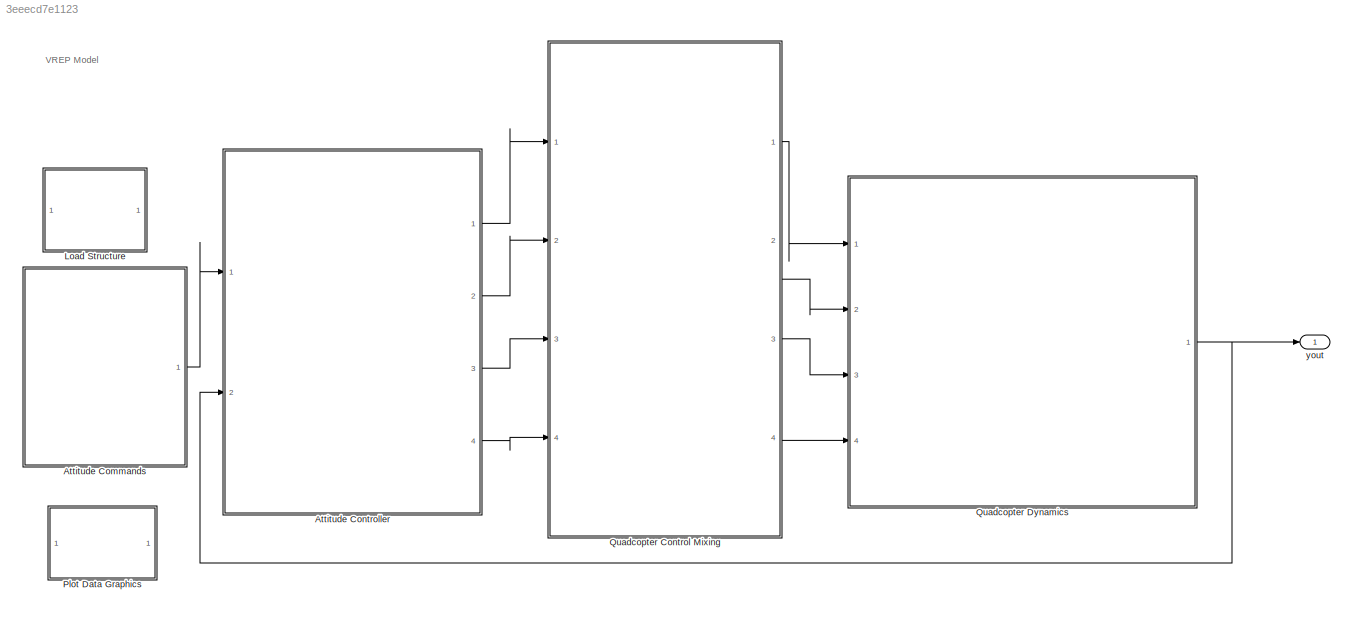
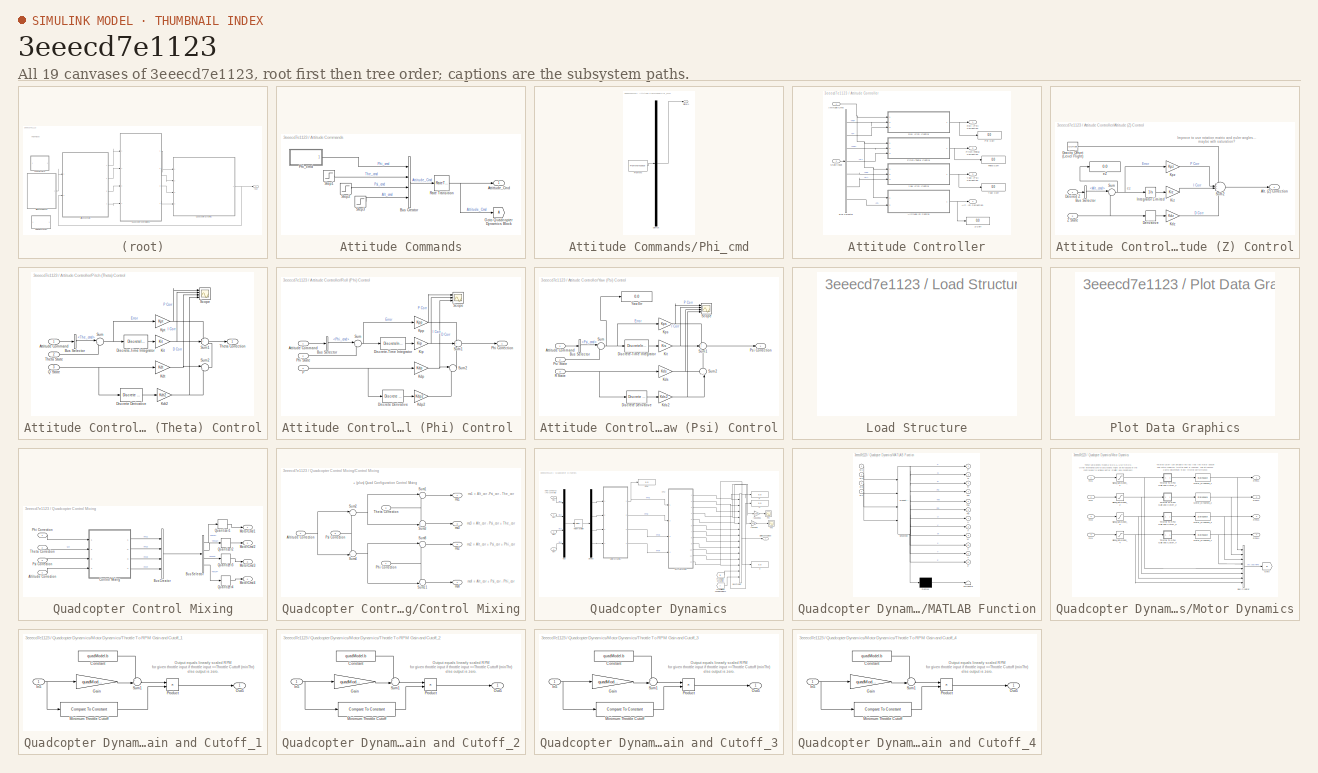
[diagram: thumbnail index - all 19 canvases of the model, root first then tree order]
MODEL slx_3eeecd7e1123
KIND model
WORKSPACE source: MAT-file member
WORKSPACE MCOS: class17 (value not decoded)
BLOCK [SubSystem] Attitude Commands
  FunctionWithSeparateData = off
  MaskHideContents = off
  MinAlgLoopOccurrences = off
  Opaque = off
  Ports = [0, 1]
  PropExecContextOutsideSubsystem = off
  RTWSystemCode = Auto
  RequestExecContextInheritance = off
BLOCK [Outport] Attitude Commands/Attittude_Cmd
  IconDisplay = Port number
BLOCK [BusCreator] Attitude Commands/Bus Creator
  DisplayOption = bar
  Ports = [4, 1]
BLOCK [Goto] Attitude Commands/Goto Quadcopter Dynamics Block
  TagVisibility = global
BLOCK [SubSystem] Attitude Commands/Phi_cmd
  ClipboardFcn = sigbuilder_block('clipboard');
  CloseFcn = sigbuilder_block('close');
  ContinueFcn = sigbuilder_block('continue');
  CopyFcn = sigbuilder_block('copy');
  DeleteFcn = sigbuilder_block('delete');
  FunctionWithSeparateData = off
  LoadFcn = sigbuilder_block('load');
  MaskHideContents = on
  MinAlgLoopOccurrences = off
  ModelCloseFcn = sigbuilder_block('modelClose');
  NameChangeFcn = sigbuilder_block('namechange');
  Opaque = off
  OpenFcn = sigbuilder_block('open',[6.75 6.75 1138.5 568.5 ]);
  PauseFcn = sigbuilder_block('pause');
  Ports = [0, 1]
  PreSaveFcn = sigbuilder_block('preSave');
  PropExecContextOutsideSubsystem = off
  RTWSystemCode = Auto
  RequestExecContextInheritance = off
  StartFcn = sigbuilder_block('start');
  StopFcn = sigbuilder_block('stop');
  Tag = STV Subsys
BLOCK [Demux] Attitude Commands/Phi_cmd/Demux
  Outputs = 1
  Ports = [1, 1]
  Tag = STV Demux
BLOCK [FromWorkspace] Attitude Commands/Phi_cmd/FromWs
  SampleTime = 0
  Tag = STV FromWs
  VariableName = tuvar
  ZeroCross = on
BLOCK [Outport] Attitude Commands/Phi_cmd/Signal 1
  IconDisplay = Port number
  Tag = STV Outport
BLOCK [RateTransition] Attitude Commands/Rate Transition
  Deterministic = off
  OutPortSampleTime = 0.01
BLOCK [Step] Attitude Commands/Step1
  After = 0
  SampleTime = 0
  Time = 0
BLOCK [Step] Attitude Commands/Step2
  After = -pi/2
  Before = -pi/2
  SampleTime = 0
  Time = 0
BLOCK [Step] Attitude Commands/Step3
  After = 1.5
  Before = 1.5
  SampleTime = 0
  Time = 0
BLOCK [SubSystem] Attitude Controller
  FunctionWithSeparateData = off
  MaskHideContents = off
  MinAlgLoopOccurrences = off
  Opaque = off
  Ports = [2, 4]
  PropExecContextOutsideSubsystem = off
  RTWSystemCode = Auto
  RequestExecContextInheritance = off
BLOCK [Outport] Attitude Controller/Alt. (Z) Correction
  IconDisplay = Port number
  Port = 4
BLOCK [SubSystem] Attitude Controller/Altitude (Z) Control
  FunctionWithSeparateData = off
  MaskHideContents = off
  MinAlgLoopOccurrences = off
  Opaque = off
  Ports = [2, 1]
  PropExecContextOutsideSubsystem = off
  RTWSystemCode = Auto
  RequestExecContextInheritance = off
BLOCK [Outport] Attitude Controller/Altitude (Z) Control/Alt. (Z) Correction
  IconDisplay = Port number
BLOCK [BusSelector] Attitude Controller/Altitude (Z) Control/Bus Selector
  OutputSignals = Alt_cmd
  Ports = [1, 1]
BLOCK [Derivative] Attitude Controller/Altitude (Z) Control/Derivative
BLOCK [Inport] Attitude Controller/Altitude (Z) Control/Desired Z
  IconDisplay = Port number
BLOCK [Constant] Attitude Controller/Altitude (Z) Control/Gravity Offset (Level Flight)
  Value = GOffset
BLOCK [Integrator] Attitude Controller/Altitude (Z) Control/Integrator Limited
  LimitOutput = on
  LowerSaturationLimit = LSat
  Ports = [1, 1]
  UpperSaturationLimit = USat
BLOCK [Gain] Attitude Controller/Altitude (Z) Control/Kdz
  Gain = Kdz
  OutDataTypeStr = Inherit: Inherit via internal rule
  ParamDataTypeStr = Inherit: Inherit via internal rule
  SaturateOnIntegerOverflow = off
BLOCK [Gain] Attitude Controller/Altitude (Z) Control/Kiz
  Gain = Kiz
  OutDataTypeStr = Inherit: Inherit via internal rule
  ParamDataTypeStr = Inherit: Inherit via internal rule
  SaturateOnIntegerOverflow = off
BLOCK [Gain] Attitude Controller/Altitude (Z) Control/Kpz
  Gain = Kpz
  OutDataTypeStr = Inherit: Inherit via internal rule
  ParamDataTypeStr = Inherit: Inherit via internal rule
  SaturateOnIntegerOverflow = off
BLOCK [Sum] Attitude Controller/Altitude (Z) Control/Sum
  IconShape = round
  InputSameDT = off
  Inputs = |+-
  OutDataTypeStr = Inherit: Inherit via internal rule
  Ports = [2, 1]
  SaturateOnIntegerOverflow = off
BLOCK [Sum] Attitude Controller/Altitude (Z) Control/Sum2
  IconShape = round
  InputSameDT = off
  Inputs = +++-
  OutDataTypeStr = Inherit: Inherit via internal rule
  Ports = [4, 1]
  SaturateOnIntegerOverflow = off
BLOCK [Inport] Attitude Controller/Altitude (Z) Control/Z State
  IconDisplay = Port number
  Port = 2
BLOCK [Display] Attitude Controller/Altitude (Z) Control/eZ
  Decimation = 1
  Lockdown = off
  Ports = [1]
BLOCK [Inport] Attitude Controller/Attitude Cmd
  IconDisplay = Port number
BLOCK [BusSelector] Attitude Controller/Bus Selector
  OutputSignals = Phi,P,The,Q,Psi,R,Z
  Ports = [1, 7]
BLOCK [Display] Attitude Controller/Phi Corr
  Decimation = 1
  Lockdown = off
  Ports = [1]
BLOCK [SubSystem] Attitude Controller/Pitch (Theta) Control
  FunctionWithSeparateData = off
  MaskHideContents = off
  MinAlgLoopOccurrences = off
  Opaque = off
  Ports = [3, 1]
  PropExecContextOutsideSubsystem = off
  RTWSystemCode = Auto
  RequestExecContextInheritance = off
BLOCK [Inport] Attitude Controller/Pitch (Theta) Control/Attitude Command
  IconDisplay = Port number
BLOCK [BusSelector] Attitude Controller/Pitch (Theta) Control/Bus Selector
  OutputSignals = The_cmd
  Ports = [1, 1]
BLOCK [Reference] Attitude Controller/Pitch (Theta) Control/Discrete Derivative  REF=simulink/Discrete/Discrete Derivative
  DoSatur = off
  ICPrevScaledInput = 0.0
  InputProcessing = Inherited
  LockScale = off
  OutDataType = fixdt(1, 16)
  OutDataTypeStr = Inherit: Inherit via internal rule
  OutMax = []
  OutMin = []
  OutScaling = 2^-10
  OutputDataTypeScalingMode = Inherit via internal rule
  Ports = [1, 1]
  RndMeth = Floor
  SourceBlock = simulink/Discrete/Discrete Derivative
  SourceType = Discrete Derivative
  gainval = 1.0
BLOCK [DiscreteIntegrator] Attitude Controller/Pitch (Theta) Control/Discrete-Time Integrator
  ICPrevOutput = DiscIntNeverNeededParam
  ICPrevScaledInput = DiscIntNeverNeededParam
  IntegratorMethod = Integration: Backward Euler
  LimitOutput = on
  LowerSaturationLimit = LSat
  Ports = [1, 1]
  SampleTime = 0.01
  UpperSaturationLimit = USat
BLOCK [Gain] Attitude Controller/Pitch (Theta) Control/Kdt
  Gain = Kdt
  OutDataTypeStr = Inherit: Inherit via internal rule
  ParamDataTypeStr = Inherit: Inherit via internal rule
  SaturateOnIntegerOverflow = off
BLOCK [Gain] Attitude Controller/Pitch (Theta) Control/Kdt2
  Gain = Kdt2
  OutDataTypeStr = Inherit: Inherit via internal rule
  ParamDataTypeStr = Inherit: Inherit via internal rule
  SaturateOnIntegerOverflow = off
BLOCK [Gain] Attitude Controller/Pitch (Theta) Control/Kit
  Gain = Kit
  OutDataTypeStr = Inherit: Inherit via internal rule
  ParamDataTypeStr = Inherit: Inherit via internal rule
  SaturateOnIntegerOverflow = off
BLOCK [Gain] Attitude Controller/Pitch (Theta) Control/Kpt
  Gain = Kpt
  OutDataTypeStr = Inherit: Inherit via internal rule
  ParamDataTypeStr = Inherit: Inherit via internal rule
  SaturateOnIntegerOverflow = off
BLOCK [Inport] Attitude Controller/Pitch (Theta) Control/Q State
  IconDisplay = Port number
  Port = 3
BLOCK [Scope] Attitude Controller/Pitch (Theta) Control/Scope
  DataFormat = StructureWithTime
  Floating = off
  LegendLocations = 0.92877     0.94234    0.051435    0.021852\n0.93155     0.70326    0.048657    0.021852\n0.92877      0.4654    0.051435    0.021852\n0.93363     0.22632    0.046574    0.021852
  LimitDataPoints = off
  NumInputPorts = 4
  Ports = [4]
  SampleTime = 0
  SaveName = ScopeData2
  ShowLegends = on
  YMax = -0.025~0.1075~0.25~0.3
  YMin = -0.12~0.0775~-0.125~-0.4
  ZoomMode = xonly
BLOCK [Sum] Attitude Controller/Pitch (Theta) Control/Sum
  IconShape = round
  InputSameDT = off
  Inputs = |+-
  OutDataTypeStr = Inherit: Inherit via internal rule
  Ports = [2, 1]
  SaturateOnIntegerOverflow = off
BLOCK [Sum] Attitude Controller/Pitch (Theta) Control/Sum1
  IconShape = round
  InputSameDT = off
  Inputs = ++-
  OutDataTypeStr = Inherit: Inherit via internal rule
  Ports = [3, 1]
  SaturateOnIntegerOverflow = off
BLOCK [Sum] Attitude Controller/Pitch (Theta) Control/Sum2
  IconShape = round
  InputSameDT = off
  Inputs = |++
  OutDataTypeStr = Inherit: Inherit via internal rule
  Ports = [2, 1]
  SaturateOnIntegerOverflow = off
BLOCK [Outport] Attitude Controller/Pitch (Theta) Control/Theta Correction
  IconDisplay = Port number
BLOCK [Inport] Attitude Controller/Pitch (Theta) Control/Theta State
  IconDisplay = Port number
  Port = 2
BLOCK [Outport] Attitude Controller/Pitch (Theta) Correction
  IconDisplay = Port number
  Port = 2
BLOCK [SubSystem] Attitude Controller/Roll (Phi) Control 
  FunctionWithSeparateData = off
  MaskHideContents = off
  MinAlgLoopOccurrences = off
  Opaque = off
  Ports = [3, 1]
  PropExecContextOutsideSubsystem = off
  RTWSystemCode = Auto
  RequestExecContextInheritance = off
BLOCK [Inport] Attitude Controller/Roll (Phi) Control /Attitude Command 
  IconDisplay = Port number
BLOCK [BusSelector] Attitude Controller/Roll (Phi) Control /Bus Selector
  OutputSignals = Phi_cmd
  Ports = [1, 1]
BLOCK [Reference] Attitude Controller/Roll (Phi) Control /Discrete Derivative  REF=simulink/Discrete/Discrete Derivative
  DoSatur = off
  ICPrevScaledInput = 0.0
  InputProcessing = Inherited
  LockScale = off
  OutDataType = fixdt(1, 16)
  OutDataTypeStr = Inherit: Inherit via internal rule
  OutMax = []
  OutMin = []
  OutScaling = 2^-10
  OutputDataTypeScalingMode = Inherit via internal rule
  Ports = [1, 1]
  RndMeth = Floor
  SourceBlock = simulink/Discrete/Discrete Derivative
  SourceType = Discrete Derivative
  gainval = 1.0
BLOCK [DiscreteIntegrator] Attitude Controller/Roll (Phi) Control /Discrete-Time Integrator
  ICPrevOutput = DiscIntNeverNeededParam
  ICPrevScaledInput = DiscIntNeverNeededParam
  IntegratorMethod = Integration: Backward Euler
  LimitOutput = on
  LowerSaturationLimit = LSat
  Ports = [1, 1]
  SampleTime = 0.01
  UpperSaturationLimit = USat
BLOCK [Gain] Attitude Controller/Roll (Phi) Control /Kdp
  Gain = Kdp
  OutDataTypeStr = Inherit: Inherit via internal rule
  ParamDataTypeStr = Inherit: Inherit via internal rule
  SaturateOnIntegerOverflow = off
BLOCK [Gain] Attitude Controller/Roll (Phi) Control /Kdp2
  Gain = Kdp2
  OutDataTypeStr = Inherit: Inherit via internal rule
  ParamDataTypeStr = Inherit: Inherit via internal rule
  SaturateOnIntegerOverflow = off
BLOCK [Gain] Attitude Controller/Roll (Phi) Control /Kip
  Gain = Kip
  OutDataTypeStr = Inherit: Inherit via internal rule
  ParamDataTypeStr = Inherit: Inherit via internal rule
  SaturateOnIntegerOverflow = off
BLOCK [Gain] Attitude Controller/Roll (Phi) Control /Kpp
  Gain = Kpp
  OutDataTypeStr = Inherit: Inherit via internal rule
  ParamDataTypeStr = Inherit: Inherit via internal rule
  SaturateOnIntegerOverflow = off
BLOCK [Inport] Attitude Controller/Roll (Phi) Control /P
  IconDisplay = Port number
  Port = 3
BLOCK [Outport] Attitude Controller/Roll (Phi) Control /Phi Correction
  IconDisplay = Port number
BLOCK [Inport] Attitude Controller/Roll (Phi) Control /Phi State
  IconDisplay = Port number
  Port = 2
BLOCK [Scope] Attitude Controller/Roll (Phi) Control /Scope
  DataFormat = StructureWithTime
  Floating = off
  LimitDataPoints = off
  NumInputPorts = 3
  Ports = [3]
  SampleTime = 0
  ShowLegends = on
  YMax = 5~5~5
  YMin = -5~-5~-5
BLOCK [Sum] Attitude Controller/Roll (Phi) Control /Sum
  IconShape = round
  InputSameDT = off
  Inputs = |+-
  OutDataTypeStr = Inherit: Inherit via internal rule
  Ports = [2, 1]
  SaturateOnIntegerOverflow = off
BLOCK [Sum] Attitude Controller/Roll (Phi) Control /Sum1
  IconShape = round
  InputSameDT = off
  Inputs = ++-
  OutDataTypeStr = Inherit: Inherit via internal rule
  Ports = [3, 1]
  SaturateOnIntegerOverflow = off
BLOCK [Sum] Attitude Controller/Roll (Phi) Control /Sum2
  IconShape = round
  InputSameDT = off
  Inputs = |++
  OutDataTypeStr = Inherit: Inherit via internal rule
  Ports = [2, 1]
  SaturateOnIntegerOverflow = off
BLOCK [Outport] Attitude Controller/Roll (Phi) Correction
  IconDisplay = Port number
BLOCK [Inport] Attitude Controller/State Input
  IconDisplay = Port number
  Port = 2
BLOCK [Display] Attitude Controller/Theta Corr
  Decimation = 1
  Lockdown = off
  Ports = [1]
BLOCK [SubSystem] Attitude Controller/Yaw (Psi) Control
  FunctionWithSeparateData = off
  MaskHideContents = off
  MinAlgLoopOccurrences = off
  Opaque = off
  Ports = [3, 1]
  PropExecContextOutsideSubsystem = off
  RTWSystemCode = Auto
  RequestExecContextInheritance = off
BLOCK [Inport] Attitude Controller/Yaw (Psi) Control/Attitude Command
  IconDisplay = Port number
BLOCK [BusSelector] Attitude Controller/Yaw (Psi) Control/Bus Selector
  OutputSignals = Psi_cmd
  Ports = [1, 1]
BLOCK [Reference] Attitude Controller/Yaw (Psi) Control/Discrete Derivative  REF=simulink/Discrete/Discrete Derivative
  DoSatur = off
  ICPrevScaledInput = 0.0
  InputProcessing = Inherited
  LockScale = off
  OutDataType = fixdt(1, 16)
  OutDataTypeStr = Inherit: Inherit via internal rule
  OutMax = []
  OutMin = []
  OutScaling = 2^-10
  OutputDataTypeScalingMode = Inherit via internal rule
  Ports = [1, 1]
  RndMeth = Floor
  SourceBlock = simulink/Discrete/Discrete Derivative
  SourceType = Discrete Derivative
  gainval = 1.0
BLOCK [DiscreteIntegrator] Attitude Controller/Yaw (Psi) Control/Discrete-Time Integrator
  ICPrevOutput = DiscIntNeverNeededParam
  ICPrevScaledInput = DiscIntNeverNeededParam
  IntegratorMethod = Integration: Backward Euler
  LimitOutput = on
  LowerSaturationLimit = LSat
  Ports = [1, 1]
  SampleTime = 0.01
  UpperSaturationLimit = USat
BLOCK [Gain] Attitude Controller/Yaw (Psi) Control/Kds
  Gain = Kds
  OutDataTypeStr = Inherit: Inherit via internal rule
  ParamDataTypeStr = Inherit: Inherit via internal rule
  SaturateOnIntegerOverflow = off
BLOCK [Gain] Attitude Controller/Yaw (Psi) Control/Kds2
  Gain = Kds2
  OutDataTypeStr = Inherit: Inherit via internal rule
  ParamDataTypeStr = Inherit: Inherit via internal rule
  SaturateOnIntegerOverflow = off
BLOCK [Gain] Attitude Controller/Yaw (Psi) Control/Kit
  Gain = Kis
  OutDataTypeStr = Inherit: Inherit via internal rule
  ParamDataTypeStr = Inherit: Inherit via internal rule
  SaturateOnIntegerOverflow = off
BLOCK [Gain] Attitude Controller/Yaw (Psi) Control/Kps
  Gain = Kps
  OutDataTypeStr = Inherit: Inherit via internal rule
  ParamDataTypeStr = Inherit: Inherit via internal rule
  SaturateOnIntegerOverflow = off
BLOCK [Outport] Attitude Controller/Yaw (Psi) Control/Psi Correction
  IconDisplay = Port number
BLOCK [Inport] Attitude Controller/Yaw (Psi) Control/Psi State
  IconDisplay = Port number
  Port = 2
BLOCK [Inport] Attitude Controller/Yaw (Psi) Control/R State
  IconDisplay = Port number
  Port = 3
BLOCK [Scope] Attitude Controller/Yaw (Psi) Control/Scope
  DataFormat = StructureWithTime
  Floating = off
  LimitDataPoints = off
  NumInputPorts = 4
  Ports = [4]
  SampleTime = 0
  SaveName = ScopeData1
  ShowLegends = on
  YMax = 0.65~0.004~0.00045~0.006
  YMin = 0~0~0~0
BLOCK [Sum] Attitude Controller/Yaw (Psi) Control/Sum
  IconShape = round
  InputSameDT = off
  Inputs = |+-
  OutDataTypeStr = Inherit: Inherit via internal rule
  Ports = [2, 1]
  SaturateOnIntegerOverflow = off
BLOCK [Sum] Attitude Controller/Yaw (Psi) Control/Sum1
  IconShape = round
  InputSameDT = off
  Inputs = ++-
  OutDataTypeStr = Inherit: Inherit via internal rule
  Ports = [3, 1]
  SaturateOnIntegerOverflow = off
BLOCK [Sum] Attitude Controller/Yaw (Psi) Control/Sum2
  IconShape = round
  InputSameDT = off
  Inputs = ++|
  OutDataTypeStr = Inherit: Inherit via internal rule
  Ports = [2, 1]
  SaturateOnIntegerOverflow = off
BLOCK [Display] Attitude Controller/Yaw (Psi) Control/Yaw Err 
  Decimation = 1
  Lockdown = off
  Ports = [1]
BLOCK [Outport] Attitude Controller/Yaw (Psi) Correction
  IconDisplay = Port number
  Port = 3
BLOCK [Display] Attitude Controller/Yaw Corr
  Decimation = 1
  Lockdown = off
  Ports = [1]
BLOCK [Display] Attitude Controller/Z Corr
  Decimation = 1
  Lockdown = off
  Ports = [1]
BLOCK [SubSystem] Load Structure
  FunctionWithSeparateData = off
  MaskHideContents = off
  MinAlgLoopOccurrences = off
  Opaque = off
  OpenFcn = uiopen('load')                                  \nif (exist('IC')==1 && exist('quadModel')==1)    \nset_param(bdroot, 'SimulationCommand', 'update')\nend
  Ports = []
  PropExecContextOutsideSubsystem = off
  RTWSystemCode = Auto
  RequestExecContextInheritance = off
  ShowPortLabels = FromPortBlockName
BLOCK [SubSystem] Plot Data Graphics
  FunctionWithSeparateData = off
  MaskHideContents = off
  MinAlgLoopOccurrences = off
  Opaque = off
  OpenFcn = if exist('yout')                                            \nyout = evalin('base', 'yout');                              \ntout = evalin('base', 'tout');                              \nquadPlotsV2(yout, tout)                                     \nelse                                                        \nmsgbox('Simulation must be run before data can be plotted.')\nend
  Ports = []
  PropExecContextOutsideSubsystem = off
  RTWSystemCode = Auto
  RequestExecContextInheritance = off
  ShowPortLabels = FromPortBlockName
BLOCK [SubSystem] Quadcopter Control Mixing
  FunctionWithSeparateData = off
  MaskHideContents = off
  MinAlgLoopOccurrences = off
  Opaque = off
  Ports = [4, 4]
  PropExecContextOutsideSubsystem = off
  RTWSystemCode = Auto
  RequestExecContextInheritance = off
BLOCK [Inport] Quadcopter Control Mixing/Altitude Correction
  IconDisplay = Port number
  Port = 4
BLOCK [BusCreator] Quadcopter Control Mixing/Bus Creator
  DisplayOption = bar
  Ports = [4, 1]
BLOCK [BusSelector] Quadcopter Control Mixing/Bus Selector
  OutputSignals = mc1,mc2,mc3,mc4
  Ports = [1, 4]
BLOCK [SubSystem] Quadcopter Control Mixing/Control Mixing
  FunctionWithSeparateData = off
  MaskHideContents = off
  MinAlgLoopOccurrences = off
  Opaque = off
  Ports = [4, 4]
  PropExecContextOutsideSubsystem = off
  RTWSystemCode = Auto
  RequestExecContextInheritance = off
BLOCK [Inport] Quadcopter Control Mixing/Control Mixing/Altitude Correction
  IconDisplay = Port number
  Port = 4
BLOCK [Inport] Quadcopter Control Mixing/Control Mixing/Phi Correction
  IconDisplay = Port number
BLOCK [Inport] Quadcopter Control Mixing/Control Mixing/Psi Correction
  IconDisplay = Port number
  Port = 3
BLOCK [Sum] Quadcopter Control Mixing/Control Mixing/Sum1
  IconShape = round
  InputSameDT = off
  Inputs = |+-
  OutDataTypeStr = Inherit: Inherit via internal rule
  Ports = [2, 1]
  SaturateOnIntegerOverflow = off
BLOCK [Sum] Quadcopter Control Mixing/Control Mixing/Sum11
  IconShape = round
  InputSameDT = off
  Inputs = -+|
  OutDataTypeStr = Inherit: Inherit via internal rule
  Ports = [2, 1]
  SaturateOnIntegerOverflow = off
BLOCK [Sum] Quadcopter Control Mixing/Control Mixing/Sum2
  IconShape = round
  InputSameDT = off
  Inputs = |++
  OutDataTypeStr = Inherit: Inherit via internal rule
  Ports = [2, 1]
  SaturateOnIntegerOverflow = off
BLOCK [Sum] Quadcopter Control Mixing/Control Mixing/Sum3
  IconShape = round
  InputSameDT = off
  Inputs = ++|
  OutDataTypeStr = Inherit: Inherit via internal rule
  Ports = [2, 1]
  SaturateOnIntegerOverflow = off
BLOCK [Sum] Quadcopter Control Mixing/Control Mixing/Sum4
  IconShape = round
  InputSameDT = off
  Inputs = -+|
  OutDataTypeStr = Inherit: Inherit via internal rule
  Ports = [2, 1]
  SaturateOnIntegerOverflow = off
BLOCK [Sum] Quadcopter Control Mixing/Control Mixing/Sum8
  IconShape = round
  InputSameDT = off
  Inputs = |++
  OutDataTypeStr = Inherit: Inherit via internal rule
  Ports = [2, 1]
  SaturateOnIntegerOverflow = off
BLOCK [Inport] Quadcopter Control Mixing/Control Mixing/Theta Correction
  IconDisplay = Port number
  Port = 2
BLOCK [Outport] Quadcopter Control Mixing/Control Mixing/mc1
  IconDisplay = Port number
BLOCK [Outport] Quadcopter Control Mixing/Control Mixing/mc2
  IconDisplay = Port number
  Port = 2
BLOCK [Outport] Quadcopter Control Mixing/Control Mixing/mc3
  IconDisplay = Port number
  Port = 3
BLOCK [Outport] Quadcopter Control Mixing/Control Mixing/mc4
  IconDisplay = Port number
  Port = 4
BLOCK [Outport] Quadcopter Control Mixing/MotorCmd1
  IconDisplay = Port number
BLOCK [Outport] Quadcopter Control Mixing/MotorCmd2
  IconDisplay = Port number
  Port = 2
BLOCK [Outport] Quadcopter Control Mixing/MotorCmd3
  IconDisplay = Port number
  Port = 3
BLOCK [Outport] Quadcopter Control Mixing/MotorCmd4
  IconDisplay = Port number
  Port = 4
BLOCK [Inport] Quadcopter Control Mixing/Phi Correction
  IconDisplay = Port number
BLOCK [Inport] Quadcopter Control Mixing/Psi Correction
  IconDisplay = Port number
  Port = 3
BLOCK [Quantizer] Quadcopter Control Mixing/Quantizer1 
  QuantizationInterval = 0.1
BLOCK [Quantizer] Quadcopter Control Mixing/Quantizer2 
  QuantizationInterval = 0.1
BLOCK [Quantizer] Quadcopter Control Mixing/Quantizer3
  QuantizationInterval = 0.1
BLOCK [Quantizer] Quadcopter Control Mixing/Quantizer4 
  QuantizationInterval = 0.1
BLOCK [Inport] Quadcopter Control Mixing/Theta Correction
  IconDisplay = Port number
  Port = 2
BLOCK [SubSystem] Quadcopter Dynamics
  FunctionWithSeparateData = off
  MaskHideContents = off
  MinAlgLoopOccurrences = off
  Opaque = off
  Ports = [4, 1]
  PropExecContextOutsideSubsystem = off
  RTWSystemCode = Auto
  RequestExecContextInheritance = off
BLOCK [BusCreator] Quadcopter Dynamics/Bus Creator
  DisplayOption = bar
  Inputs = 'P','Q','R','Phi','The','Psi','U','V','W','X','Y','Z','mc and RPM','Attitude_Cmd'
  Ports = [14, 1]
BLOCK [Demux] Quadcopter Dynamics/Demux
  DisplayOption = bar
  Ports = [1, 4]
BLOCK [From] Quadcopter Dynamics/From Attitude Command Block
  TagVisibility = global
BLOCK [From] Quadcopter Dynamics/From Motor Dynamics
  GotoTag = B
  TagVisibility = global
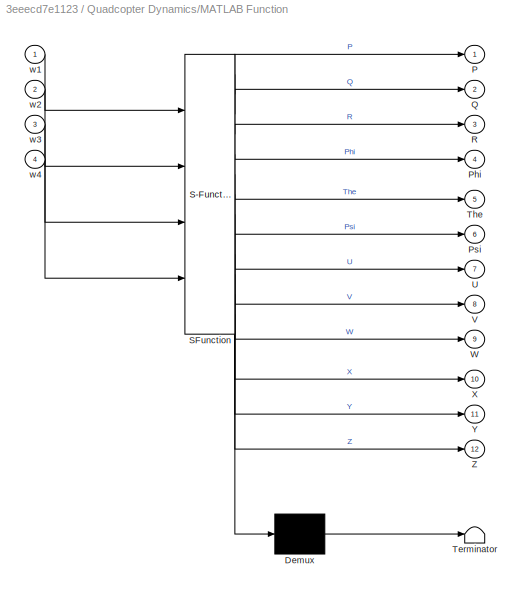
BLOCK [SubSystem] Quadcopter Dynamics/MATLAB Function
  ErrorFcn = Stateflow.Translate.translate
  FunctionWithSeparateData = off
  MaskHideContents = off
  MinAlgLoopOccurrences = off
  Opaque = off
  PermitHierarchicalResolution = ExplicitOnly
  Ports = [4, 12]
  PropExecContextOutsideSubsystem = off
  RTWSystemCode = Auto
  RequestExecContextInheritance = off
  SFBlockType = MATLAB Function
  TreatAsAtomicUnit = on
BLOCK [Demux] Quadcopter Dynamics/MATLAB Function/ Demux 
  Outputs = 1
  Ports = [1, 1]
BLOCK [S-Function] Quadcopter Dynamics/MATLAB Function/ SFunction 
  EnableBusSupport = on
  FunctionName = sf_sfun
  PortCounts = [4 13]
  Ports = [4, 13]
  Tag = Stateflow S-Function QuadSimulationVrepHoverUsens1 2
BLOCK [Terminator] Quadcopter Dynamics/MATLAB Function/ Terminator 
BLOCK [Outport] Quadcopter Dynamics/MATLAB Function/P
  IconDisplay = Port number
BLOCK [Outport] Quadcopter Dynamics/MATLAB Function/Phi
  IconDisplay = Port number
  Port = 4
BLOCK [Outport] Quadcopter Dynamics/MATLAB Function/Psi
  IconDisplay = Port number
  Port = 6
BLOCK [Outport] Quadcopter Dynamics/MATLAB Function/Q
  IconDisplay = Port number
  Port = 2
BLOCK [Outport] Quadcopter Dynamics/MATLAB Function/R
  IconDisplay = Port number
  Port = 3
BLOCK [Outport] Quadcopter Dynamics/MATLAB Function/The
  IconDisplay = Port number
  Port = 5
BLOCK [Outport] Quadcopter Dynamics/MATLAB Function/U
  IconDisplay = Port number
  Port = 7
BLOCK [Outport] Quadcopter Dynamics/MATLAB Function/V
  IconDisplay = Port number
  Port = 8
BLOCK [Outport] Quadcopter Dynamics/MATLAB Function/W
  IconDisplay = Port number
  Port = 9
BLOCK [Outport] Quadcopter Dynamics/MATLAB Function/X
  IconDisplay = Port number
  Port = 10
BLOCK [Outport] Quadcopter Dynamics/MATLAB Function/Y
  IconDisplay = Port number
  Port = 11
BLOCK [Outport] Quadcopter Dynamics/MATLAB Function/Z
  IconDisplay = Port number
  Port = 12
BLOCK [Inport] Quadcopter Dynamics/MATLAB Function/w1
  IconDisplay = Port number
BLOCK [Inport] Quadcopter Dynamics/MATLAB Function/w2
  IconDisplay = Port number
  Port = 2
BLOCK [Inport] Quadcopter Dynamics/MATLAB Function/w3
  IconDisplay = Port number
  Port = 3
BLOCK [Inport] Quadcopter Dynamics/MATLAB Function/w4
  IconDisplay = Port number
  Port = 4
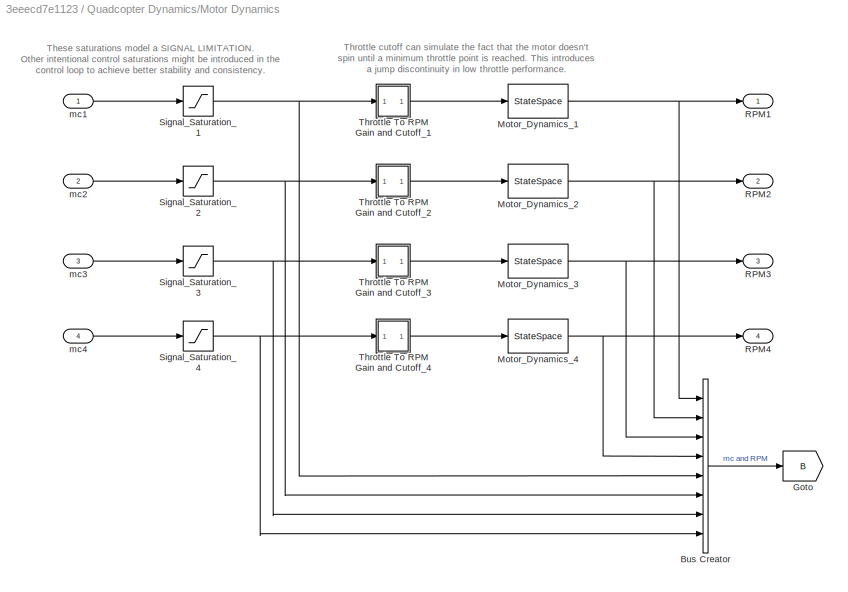
BLOCK [SubSystem] Quadcopter Dynamics/Motor Dynamics
  FunctionWithSeparateData = off
  MaskHideContents = off
  MinAlgLoopOccurrences = off
  Opaque = off
  Ports = [4, 4]
  PropExecContextOutsideSubsystem = off
  RTWSystemCode = Auto
  RequestExecContextInheritance = off
BLOCK [BusCreator] Quadcopter Dynamics/Motor Dynamics/Bus Creator
  DisplayOption = bar
  Inputs = 8
  Ports = [8, 1]
BLOCK [Goto] Quadcopter Dynamics/Motor Dynamics/Goto
  GotoTag = B
  TagVisibility = global
BLOCK [StateSpace] Quadcopter Dynamics/Motor Dynamics/Motor_Dynamics_1
  A = -1/quadModel.T
  C = 1/quadModel.T
  D = 0
  X0 = IC.w1*quadModel.T
BLOCK [StateSpace] Quadcopter Dynamics/Motor Dynamics/Motor_Dynamics_2
  A = -1/quadModel.T
  C = 1/quadModel.T
  D = 0
  X0 = IC.w2*quadModel.T
BLOCK [StateSpace] Quadcopter Dynamics/Motor Dynamics/Motor_Dynamics_3
  A = -1/quadModel.T
  C = 1/quadModel.T
  D = 0
  X0 = IC.w3*quadModel.T
BLOCK [StateSpace] Quadcopter Dynamics/Motor Dynamics/Motor_Dynamics_4
  A = -1/quadModel.T
  C = 1/quadModel.T
  D = 0
  X0 = IC.w4*quadModel.T
BLOCK [Outport] Quadcopter Dynamics/Motor Dynamics/RPM1
  IconDisplay = Port number
BLOCK [Outport] Quadcopter Dynamics/Motor Dynamics/RPM2
  IconDisplay = Port number
  Port = 2
BLOCK [Outport] Quadcopter Dynamics/Motor Dynamics/RPM3
  IconDisplay = Port number
  Port = 3
BLOCK [Outport] Quadcopter Dynamics/Motor Dynamics/RPM4
  IconDisplay = Port number
  Port = 4
BLOCK [Saturate] Quadcopter Dynamics/Motor Dynamics/Signal_Saturation_1
  InputPortMap = u0
  LowerLimit = 0
  Ports = [1, 1]
  UpperLimit = 100
BLOCK [Saturate] Quadcopter Dynamics/Motor Dynamics/Signal_Saturation_2
  InputPortMap = u0
  LowerLimit = 0
  Ports = [1, 1]
  UpperLimit = 100
BLOCK [Saturate] Quadcopter Dynamics/Motor Dynamics/Signal_Saturation_3
  InputPortMap = u0
  LowerLimit = 0
  Ports = [1, 1]
  UpperLimit = 100
BLOCK [Saturate] Quadcopter Dynamics/Motor Dynamics/Signal_Saturation_4
  InputPortMap = u0
  LowerLimit = 0
  Ports = [1, 1]
  UpperLimit = 100
BLOCK [SubSystem] Quadcopter Dynamics/Motor Dynamics/Throttle To RPM Gain and Cutoff_1
  FunctionWithSeparateData = off
  MaskHideContents = off
  MinAlgLoopOccurrences = off
  Opaque = off
  Ports = [1, 1]
  PropExecContextOutsideSubsystem = off
  RTWSystemCode = Auto
  RequestExecContextInheritance = off
  ShowPortLabels = none
BLOCK [Constant] Quadcopter Dynamics/Motor Dynamics/Throttle To RPM Gain and Cutoff_1/Constant
  Value = quadModel.b
BLOCK [Gain] Quadcopter Dynamics/Motor Dynamics/Throttle To RPM Gain and Cutoff_1/Gain
  Gain = quadModel.cr
  OutDataTypeStr = Inherit: Inherit via internal rule
  ParamDataTypeStr = Inherit: Inherit via internal rule
  SaturateOnIntegerOverflow = off
BLOCK [Inport] Quadcopter Dynamics/Motor Dynamics/Throttle To RPM Gain and Cutoff_1/In5
  IconDisplay = Port number
BLOCK [Reference] Quadcopter Dynamics/Motor Dynamics/Throttle To RPM Gain and Cutoff_1/Minimum Throttle Cutoff  REF=simulink/Logic and Bit
Operations/Compare
To Constant
  OutDataTypeStr = uint8
  Ports = [1, 1]
  SourceBlock = simulink/Logic and Bit\nOperations/Compare\nTo Constant
  SourceType = Compare To Constant
  ZeroCross = on
  const = quadModel.minThr
  relop = >=
BLOCK [Outport] Quadcopter Dynamics/Motor Dynamics/Throttle To RPM Gain and Cutoff_1/Out5
  IconDisplay = Port number
BLOCK [Product] Quadcopter Dynamics/Motor Dynamics/Throttle To RPM Gain and Cutoff_1/Product
  InputSameDT = off
  OutDataTypeStr = Inherit: Inherit via internal rule
  Ports = [2, 1]
  RndMeth = Floor
  SaturateOnIntegerOverflow = off
BLOCK [Sum] Quadcopter Dynamics/Motor Dynamics/Throttle To RPM Gain and Cutoff_1/Sum1
  IconShape = round
  InputSameDT = off
  Inputs = ++|
  OutDataTypeStr = Inherit: Inherit via internal rule
  Ports = [2, 1]
  SaturateOnIntegerOverflow = off
BLOCK [SubSystem] Quadcopter Dynamics/Motor Dynamics/Throttle To RPM Gain and Cutoff_2
  FunctionWithSeparateData = off
  MaskHideContents = off
  MinAlgLoopOccurrences = off
  Opaque = off
  Ports = [1, 1]
  PropExecContextOutsideSubsystem = off
  RTWSystemCode = Auto
  RequestExecContextInheritance = off
  ShowPortLabels = none
BLOCK [Constant] Quadcopter Dynamics/Motor Dynamics/Throttle To RPM Gain and Cutoff_2/Constant
  Value = quadModel.b
BLOCK [Gain] Quadcopter Dynamics/Motor Dynamics/Throttle To RPM Gain and Cutoff_2/Gain
  Gain = quadModel.cr
  OutDataTypeStr = Inherit: Inherit via internal rule
  ParamDataTypeStr = Inherit: Inherit via internal rule
  SaturateOnIntegerOverflow = off
BLOCK [Inport] Quadcopter Dynamics/Motor Dynamics/Throttle To RPM Gain and Cutoff_2/In5
  IconDisplay = Port number
BLOCK [Reference] Quadcopter Dynamics/Motor Dynamics/Throttle To RPM Gain and Cutoff_2/Minimum Throttle Cutoff  REF=simulink/Logic and Bit
Operations/Compare
To Constant
  OutDataTypeStr = uint8
  Ports = [1, 1]
  SourceBlock = simulink/Logic and Bit\nOperations/Compare\nTo Constant
  SourceType = Compare To Constant
  ZeroCross = on
  const = quadModel.minThr
  relop = >=
BLOCK [Outport] Quadcopter Dynamics/Motor Dynamics/Throttle To RPM Gain and Cutoff_2/Out5
  IconDisplay = Port number
BLOCK [Product] Quadcopter Dynamics/Motor Dynamics/Throttle To RPM Gain and Cutoff_2/Product
  InputSameDT = off
  OutDataTypeStr = Inherit: Inherit via internal rule
  Ports = [2, 1]
  RndMeth = Floor
  SaturateOnIntegerOverflow = off
BLOCK [Sum] Quadcopter Dynamics/Motor Dynamics/Throttle To RPM Gain and Cutoff_2/Sum1
  IconShape = round
  InputSameDT = off
  Inputs = ++|
  OutDataTypeStr = Inherit: Inherit via internal rule
  Ports = [2, 1]
  SaturateOnIntegerOverflow = off
BLOCK [SubSystem] Quadcopter Dynamics/Motor Dynamics/Throttle To RPM Gain and Cutoff_3
  FunctionWithSeparateData = off
  MaskHideContents = off
  MinAlgLoopOccurrences = off
  Opaque = off
  Ports = [1, 1]
  PropExecContextOutsideSubsystem = off
  RTWSystemCode = Auto
  RequestExecContextInheritance = off
  ShowPortLabels = none
BLOCK [Constant] Quadcopter Dynamics/Motor Dynamics/Throttle To RPM Gain and Cutoff_3/Constant
  Value = quadModel.b
BLOCK [Gain] Quadcopter Dynamics/Motor Dynamics/Throttle To RPM Gain and Cutoff_3/Gain
  Gain = quadModel.cr
  OutDataTypeStr = Inherit: Inherit via internal rule
  ParamDataTypeStr = Inherit: Inherit via internal rule
  SaturateOnIntegerOverflow = off
BLOCK [Inport] Quadcopter Dynamics/Motor Dynamics/Throttle To RPM Gain and Cutoff_3/In5
  IconDisplay = Port number
BLOCK [Reference] Quadcopter Dynamics/Motor Dynamics/Throttle To RPM Gain and Cutoff_3/Minimum Throttle Cutoff  REF=simulink/Logic and Bit
Operations/Compare
To Constant
  OutDataTypeStr = uint8
  Ports = [1, 1]
  SourceBlock = simulink/Logic and Bit\nOperations/Compare\nTo Constant
  SourceType = Compare To Constant
  ZeroCross = on
  const = quadModel.minThr
  relop = >=
BLOCK [Outport] Quadcopter Dynamics/Motor Dynamics/Throttle To RPM Gain and Cutoff_3/Out5
  IconDisplay = Port number
BLOCK [Product] Quadcopter Dynamics/Motor Dynamics/Throttle To RPM Gain and Cutoff_3/Product
  InputSameDT = off
  OutDataTypeStr = Inherit: Inherit via internal rule
  Ports = [2, 1]
  RndMeth = Floor
  SaturateOnIntegerOverflow = off
BLOCK [Sum] Quadcopter Dynamics/Motor Dynamics/Throttle To RPM Gain and Cutoff_3/Sum1
  IconShape = round
  InputSameDT = off
  Inputs = ++|
  OutDataTypeStr = Inherit: Inherit via internal rule
  Ports = [2, 1]
  SaturateOnIntegerOverflow = off
BLOCK [SubSystem] Quadcopter Dynamics/Motor Dynamics/Throttle To RPM Gain and Cutoff_4
  FunctionWithSeparateData = off
  MaskHideContents = off
  MinAlgLoopOccurrences = off
  Opaque = off
  Ports = [1, 1]
  PropExecContextOutsideSubsystem = off
  RTWSystemCode = Auto
  RequestExecContextInheritance = off
  ShowPortLabels = none
BLOCK [Constant] Quadcopter Dynamics/Motor Dynamics/Throttle To RPM Gain and Cutoff_4/Constant
  Value = quadModel.b
BLOCK [Gain] Quadcopter Dynamics/Motor Dynamics/Throttle To RPM Gain and Cutoff_4/Gain
  Gain = quadModel.cr
  OutDataTypeStr = Inherit: Inherit via internal rule
  ParamDataTypeStr = Inherit: Inherit via internal rule
  SaturateOnIntegerOverflow = off
BLOCK [Inport] Quadcopter Dynamics/Motor Dynamics/Throttle To RPM Gain and Cutoff_4/In5
  IconDisplay = Port number
BLOCK [Reference] Quadcopter Dynamics/Motor Dynamics/Throttle To RPM Gain and Cutoff_4/Minimum Throttle Cutoff  REF=simulink/Logic and Bit
Operations/Compare
To Constant
  OutDataTypeStr = uint8
  Ports = [1, 1]
  SourceBlock = simulink/Logic and Bit\nOperations/Compare\nTo Constant
  SourceType = Compare To Constant
  ZeroCross = on
  const = quadModel.minThr
  relop = >=
BLOCK [Outport] Quadcopter Dynamics/Motor Dynamics/Throttle To RPM Gain and Cutoff_4/Out5
  IconDisplay = Port number
BLOCK [Product] Quadcopter Dynamics/Motor Dynamics/Throttle To RPM Gain and Cutoff_4/Product
  InputSameDT = off
  OutDataTypeStr = Inherit: Inherit via internal rule
  Ports = [2, 1]
  RndMeth = Floor
  SaturateOnIntegerOverflow = off
BLOCK [Sum] Quadcopter Dynamics/Motor Dynamics/Throttle To RPM Gain and Cutoff_4/Sum1
  IconShape = round
  InputSameDT = off
  Inputs = ++|
  OutDataTypeStr = Inherit: Inherit via internal rule
  Ports = [2, 1]
  SaturateOnIntegerOverflow = off
BLOCK [Inport] Quadcopter Dynamics/Motor Dynamics/mc1
  IconDisplay = Port number
BLOCK [Inport] Quadcopter Dynamics/Motor Dynamics/mc2
  IconDisplay = Port number
  Port = 2
BLOCK [Inport] Quadcopter Dynamics/Motor Dynamics/mc3
  IconDisplay = Port number
  Port = 3
BLOCK [Inport] Quadcopter Dynamics/Motor Dynamics/mc4
  IconDisplay = Port number
  Port = 4
BLOCK [Mux] Quadcopter Dynamics/Mux
  DisplayOption = bar
  Ports = [4, 1]
BLOCK [Display] Quadcopter Dynamics/P
  Decimation = 1
  Lockdown = off
  Ports = [1]
BLOCK [Scope] Quadcopter Dynamics/Phi
  DataFormat = StructureWithTime
  Floating = off
  NumInputPorts = 1
  Ports = [1]
  SampleTime = 0
  SaveName = ScopeData1
  ShowLegends = off
BLOCK [Display] Quadcopter Dynamics/Q
  Decimation = 1
  Lockdown = off
  Ports = [1]
BLOCK [Display] Quadcopter Dynamics/RPM
  Decimation = 1
  Lockdown = off
  Ports = [1]
BLOCK [RateTransition] Quadcopter Dynamics/Rate Transition
  Deterministic = off
  OutPortSampleTime = 0.01
BLOCK [Outport] Quadcopter Dynamics/States and Output
  IconDisplay = Port number
BLOCK [Scope] Quadcopter Dynamics/The
  DataFormat = StructureWithTime
  Floating = off
  NumInputPorts = 1
  Ports = [1]
  SampleTime = 0
  ShowLegends = off
BLOCK [Display] Quadcopter Dynamics/Z
  Decimation = 1
  Lockdown = off
  Ports = [1]
BLOCK [Inport] Quadcopter Dynamics/mc1
  IconDisplay = Port number
BLOCK [Inport] Quadcopter Dynamics/mc2
  IconDisplay = Port number
  Port = 2
BLOCK [Inport] Quadcopter Dynamics/mc3
  IconDisplay = Port number
  Port = 3
BLOCK [Inport] Quadcopter Dynamics/mc4
  IconDisplay = Port number
  Port = 4
BLOCK [Gain] Quadcopter Dynamics/rad2deg
  Gain = 180/pi
  OutDataTypeStr = Inherit: Inherit via internal rule
  ParamDataTypeStr = Inherit: Inherit via internal rule
  SaturateOnIntegerOverflow = off
BLOCK [Gain] Quadcopter Dynamics/rad2deg1
  Gain = 180/pi
  OutDataTypeStr = Inherit: Inherit via internal rule
  ParamDataTypeStr = Inherit: Inherit via internal rule
  SaturateOnIntegerOverflow = off
BLOCK [Outport] yout
  IconDisplay = Port number
ANNOTATION (root): VREP Model
ANNOTATION Attitude Controller/Altitude (Z) Control: Improve to use rotation matrix and euler angles... maybe with saturation?
ANNOTATION Attitude Controller/Altitude (Z) Control: ez
ANNOTATION Quadcopter Control Mixing/Control Mixing: + (plus) Quad Configuration Control Mixing
ANNOTATION Quadcopter Control Mixing/Control Mixing: mc1 = Alt_cor -Psi_cor - The_cor
ANNOTATION Quadcopter Control Mixing/Control Mixing: mc2 = Alt_cor + Psi_cor + Phi_cor
ANNOTATION Quadcopter Control Mixing/Control Mixing: mc3 = Alt_cor - Psi_cor + The_cor
ANNOTATION Quadcopter Control Mixing/Control Mixing: mc4 = Alt_cor + Psi_cor - Phi_cor
ANNOTATION Quadcopter Dynamics: Motor Commands (Percent Thottle)
ANNOTATION Quadcopter Dynamics: RPM
ANNOTATION Quadcopter Dynamics/Motor Dynamics: These saturations model a SIGNAL LIMITATION. Other intentional control saturations might be introduced in the control loop to achieve better stability and consistency.
ANNOTATION Quadcopter Dynamics/Motor Dynamics: Throttle cutoff can simulate the fact that the motor doesn't spin until a minimum throttle point is reached. This introduces a jump discontinuity in low throttle performance.
ANNOTATION Quadcopter Dynamics/Motor Dynamics/Throttle To RPM Gain and Cutoff_1: Output equals linearly scaled RPM for given throttle input if throttle input >=Throttle Cuttoff (minThr) else output is zero.
ANNOTATION Quadcopter Dynamics/Motor Dynamics/Throttle To RPM Gain and Cutoff_2: Output equals linearly scaled RPM for given throttle input if throttle input >=Throttle Cuttoff (minThr) else output is zero.
ANNOTATION Quadcopter Dynamics/Motor Dynamics/Throttle To RPM Gain and Cutoff_3: Output equals linearly scaled RPM for given throttle input if throttle input >=Throttle Cuttoff (minThr) else output is zero.
ANNOTATION Quadcopter Dynamics/Motor Dynamics/Throttle To RPM Gain and Cutoff_4: Output equals linearly scaled RPM for given throttle input if throttle input >=Throttle Cuttoff (minThr) else output is zero.
LINE Attitude Commands/Bus Creator:1 -> Attitude Commands/Rate Transition:1
LINE Attitude Commands/Phi_cmd:1 -> Attitude Commands/Bus Creator:1
NET Attitude Commands/Rate Transition:1 -> Attitude Commands/Attittude_Cmd:1, Attitude Commands/Goto Quadcopter Dynamics Block:1
LINE Attitude Commands/Step1:1 -> Attitude Commands/Bus Creator:2
LINE Attitude Commands/Step2:1 -> Attitude Commands/Bus Creator:3
LINE Attitude Commands/Step3:1 -> Attitude Commands/Bus Creator:4
LINE Attitude Commands:1 -> Attitude Controller:1
LINE Attitude Controller/Altitude (Z) Control/Bus Selector:1 -> Attitude Controller/Altitude (Z) Control/Sum:1
LINE Attitude Controller/Altitude (Z) Control/Derivative:1 -> Attitude Controller/Altitude (Z) Control/Kdz:1
LINE Attitude Controller/Altitude (Z) Control/Desired Z:1 -> Attitude Controller/Altitude (Z) Control/Bus Selector:1
LINE Attitude Controller/Altitude (Z) Control/Gravity Offset (Level Flight):1 -> Attitude Controller/Altitude (Z) Control/Sum2:1
LINE Attitude Controller/Altitude (Z) Control/Integrator Limited:1 -> Attitude Controller/Altitude (Z) Control/Kiz:1
LINE Attitude Controller/Altitude (Z) Control/Kdz:1 -> Attitude Controller/Altitude (Z) Control/Sum2:4
LINE Attitude Controller/Altitude (Z) Control/Kiz:1 -> Attitude Controller/Altitude (Z) Control/Sum2:3
LINE Attitude Controller/Altitude (Z) Control/Kpz:1 -> Attitude Controller/Altitude (Z) Control/Sum2:2
LINE Attitude Controller/Altitude (Z) Control/Sum2:1 -> Attitude Controller/Altitude (Z) Control/Alt. (Z) Correction:1
NET Attitude Controller/Altitude (Z) Control/Sum:1 -> Attitude Controller/Altitude (Z) Control/Integrator Limited:1, Attitude Controller/Altitude (Z) Control/Kpz:1, Attitude Controller/Altitude (Z) Control/eZ:1
NET Attitude Controller/Altitude (Z) Control/Z State:1 -> Attitude Controller/Altitude (Z) Control/Derivative:1, Attitude Controller/Altitude (Z) Control/Sum:2
NET Attitude Controller/Altitude (Z) Control:1 -> Attitude Controller/Alt. (Z) Correction:1, Attitude Controller/Z Corr:1
NET Attitude Controller/Attitude Cmd:1 -> Attitude Controller/Altitude (Z) Control:1, Attitude Controller/Pitch (Theta) Control:1, Attitude Controller/Roll (Phi) Control :1, Attitude Controller/Yaw (Psi) Control:1
LINE Attitude Controller/Bus Selector:1 -> Attitude Controller/Roll (Phi) Control :2
LINE Attitude Controller/Bus Selector:2 -> Attitude Controller/Roll (Phi) Control :3
LINE Attitude Controller/Bus Selector:3 -> Attitude Controller/Pitch (Theta) Control:2
LINE Attitude Controller/Bus Selector:4 -> Attitude Controller/Pitch (Theta) Control:3
LINE Attitude Controller/Bus Selector:5 -> Attitude Controller/Yaw (Psi) Control:2
LINE Attitude Controller/Bus Selector:6 -> Attitude Controller/Yaw (Psi) Control:3
LINE Attitude Controller/Bus Selector:7 -> Attitude Controller/Altitude (Z) Control:2
LINE Attitude Controller/Pitch (Theta) Control/Attitude Command:1 -> Attitude Controller/Pitch (Theta) Control/Bus Selector:1
LINE Attitude Controller/Pitch (Theta) Control/Bus Selector:1 -> Attitude Controller/Pitch (Theta) Control/Sum:1
LINE Attitude Controller/Pitch (Theta) Control/Discrete Derivative:1 -> Attitude Controller/Pitch (Theta) Control/Kdt2:1
LINE Attitude Controller/Pitch (Theta) Control/Discrete-Time Integrator:1 -> Attitude Controller/Pitch (Theta) Control/Kit:1
NET Attitude Controller/Pitch (Theta) Control/Kdt2:1 -> Attitude Controller/Pitch (Theta) Control/Scope:4, Attitude Controller/Pitch (Theta) Control/Sum2:2
NET Attitude Controller/Pitch (Theta) Control/Kdt:1 -> Attitude Controller/Pitch (Theta) Control/Scope:3, Attitude Controller/Pitch (Theta) Control/Sum2:1
NET Attitude Controller/Pitch (Theta) Control/Kit:1 -> Attitude Controller/Pitch (Theta) Control/Scope:2, Attitude Controller/Pitch (Theta) Control/Sum1:2
NET Attitude Controller/Pitch (Theta) Control/Kpt:1 -> Attitude Controller/Pitch (Theta) Control/Scope:1, Attitude Controller/Pitch (Theta) Control/Sum1:1
NET Attitude Controller/Pitch (Theta) Control/Q State:1 -> Attitude Controller/Pitch (Theta) Control/Discrete Derivative:1, Attitude Controller/Pitch (Theta) Control/Kdt:1
LINE Attitude Controller/Pitch (Theta) Control/Sum1:1 -> Attitude Controller/Pitch (Theta) Control/Theta Correction:1
LINE Attitude Controller/Pitch (Theta) Control/Sum2:1 -> Attitude Controller/Pitch (Theta) Control/Sum1:3
NET Attitude Controller/Pitch (Theta) Control/Sum:1 -> Attitude Controller/Pitch (Theta) Control/Discrete-Time Integrator:1, Attitude Controller/Pitch (Theta) Control/Kpt:1
LINE Attitude Controller/Pitch (Theta) Control/Theta State:1 -> Attitude Controller/Pitch (Theta) Control/Sum:2
NET Attitude Controller/Pitch (Theta) Control:1 -> Attitude Controller/Pitch (Theta) Correction:1, Attitude Controller/Theta Corr:1
LINE Attitude Controller/Roll (Phi) Control /Attitude Command :1 -> Attitude Controller/Roll (Phi) Control /Bus Selector:1
LINE Attitude Controller/Roll (Phi) Control /Bus Selector:1 -> Attitude Controller/Roll (Phi) Control /Sum:1
LINE Attitude Controller/Roll (Phi) Control /Discrete Derivative:1 -> Attitude Controller/Roll (Phi) Control /Kdp2:1
LINE Attitude Controller/Roll (Phi) Control /Discrete-Time Integrator:1 -> Attitude Controller/Roll (Phi) Control /Kip:1
LINE Attitude Controller/Roll (Phi) Control /Kdp2:1 -> Attitude Controller/Roll (Phi) Control /Sum2:2
NET Attitude Controller/Roll (Phi) Control /Kdp:1 -> Attitude Controller/Roll (Phi) Control /Scope:3, Attitude Controller/Roll (Phi) Control /Sum2:1
NET Attitude Controller/Roll (Phi) Control /Kip:1 -> Attitude Controller/Roll (Phi) Control /Scope:2, Attitude Controller/Roll (Phi) Control /Sum1:2
NET Attitude Controller/Roll (Phi) Control /Kpp:1 -> Attitude Controller/Roll (Phi) Control /Scope:1, Attitude Controller/Roll (Phi) Control /Sum1:1
NET Attitude Controller/Roll (Phi) Control /P:1 -> Attitude Controller/Roll (Phi) Control /Discrete Derivative:1, Attitude Controller/Roll (Phi) Control /Kdp:1
LINE Attitude Controller/Roll (Phi) Control /Phi State:1 -> Attitude Controller/Roll (Phi) Control /Sum:2
LINE Attitude Controller/Roll (Phi) Control /Sum1:1 -> Attitude Controller/Roll (Phi) Control /Phi Correction:1
LINE Attitude Controller/Roll (Phi) Control /Sum2:1 -> Attitude Controller/Roll (Phi) Control /Sum1:3
NET Attitude Controller/Roll (Phi) Control /Sum:1 -> Attitude Controller/Roll (Phi) Control /Discrete-Time Integrator:1, Attitude Controller/Roll (Phi) Control /Kpp:1
NET Attitude Controller/Roll (Phi) Control :1 -> Attitude Controller/Phi Corr:1, Attitude Controller/Roll (Phi) Correction:1
LINE Attitude Controller/State Input:1 -> Attitude Controller/Bus Selector:1
LINE Attitude Controller/Yaw (Psi) Control/Attitude Command:1 -> Attitude Controller/Yaw (Psi) Control/Bus Selector:1
LINE Attitude Controller/Yaw (Psi) Control/Bus Selector:1 -> Attitude Controller/Yaw (Psi) Control/Sum:1
LINE Attitude Controller/Yaw (Psi) Control/Discrete Derivative:1 -> Attitude Controller/Yaw (Psi) Control/Kds2:1
LINE Attitude Controller/Yaw (Psi) Control/Discrete-Time Integrator:1 -> Attitude Controller/Yaw (Psi) Control/Kit:1
NET Attitude Controller/Yaw (Psi) Control/Kds2:1 -> Attitude Controller/Yaw (Psi) Control/Scope:4, Attitude Controller/Yaw (Psi) Control/Sum2:2
NET Attitude Controller/Yaw (Psi) Control/Kds:1 -> Attitude Controller/Yaw (Psi) Control/Scope:3, Attitude Controller/Yaw (Psi) Control/Sum2:1
NET Attitude Controller/Yaw (Psi) Control/Kit:1 -> Attitude Controller/Yaw (Psi) Control/Scope:2, Attitude Controller/Yaw (Psi) Control/Sum1:2
NET Attitude Controller/Yaw (Psi) Control/Kps:1 -> Attitude Controller/Yaw (Psi) Control/Scope:1, Attitude Controller/Yaw (Psi) Control/Sum1:1
LINE Attitude Controller/Yaw (Psi) Control/Psi State:1 -> Attitude Controller/Yaw (Psi) Control/Sum:2
NET Attitude Controller/Yaw (Psi) Control/R State:1 -> Attitude Controller/Yaw (Psi) Control/Discrete Derivative:1, Attitude Controller/Yaw (Psi) Control/Kds:1
LINE Attitude Controller/Yaw (Psi) Control/Sum1:1 -> Attitude Controller/Yaw (Psi) Control/Psi Correction:1
LINE Attitude Controller/Yaw (Psi) Control/Sum2:1 -> Attitude Controller/Yaw (Psi) Control/Sum1:3
NET Attitude Controller/Yaw (Psi) Control/Sum:1 -> Attitude Controller/Yaw (Psi) Control/Discrete-Time Integrator:1, Attitude Controller/Yaw (Psi) Control/Kps:1, Attitude Controller/Yaw (Psi) Control/Yaw Err :1
NET Attitude Controller/Yaw (Psi) Control:1 -> Attitude Controller/Yaw (Psi) Correction:1, Attitude Controller/Yaw Corr:1
LINE Attitude Controller:1 -> Quadcopter Control Mixing:1
LINE Attitude Controller:2 -> Quadcopter Control Mixing:2
LINE Attitude Controller:3 -> Quadcopter Control Mixing:3
LINE Attitude Controller:4 -> Quadcopter Control Mixing:4
LINE Quadcopter Control Mixing/Altitude Correction:1 -> Quadcopter Control Mixing/Control Mixing:4
LINE Quadcopter Control Mixing/Bus Creator:1 -> Quadcopter Control Mixing/Bus Selector:1
LINE Quadcopter Control Mixing/Bus Selector:1 -> Quadcopter Control Mixing/Quantizer1 :1
LINE Quadcopter Control Mixing/Bus Selector:2 -> Quadcopter Control Mixing/Quantizer2 :1
LINE Quadcopter Control Mixing/Bus Selector:3 -> Quadcopter Control Mixing/Quantizer3:1
LINE Quadcopter Control Mixing/Bus Selector:4 -> Quadcopter Control Mixing/Quantizer4 :1
NET Quadcopter Control Mixing/Control Mixing/Altitude Correction:1 -> Quadcopter Control Mixing/Control Mixing/Sum2:1, Quadcopter Control Mixing/Control Mixing/Sum4:2
NET Quadcopter Control Mixing/Control Mixing/Phi Correction:1 -> Quadcopter Control Mixing/Control Mixing/Sum11:1, Quadcopter Control Mixing/Control Mixing/Sum8:2
NET Quadcopter Control Mixing/Control Mixing/Psi Correction:1 -> Quadcopter Control Mixing/Control Mixing/Sum2:2, Quadcopter Control Mixing/Control Mixing/Sum4:1
LINE Quadcopter Control Mixing/Control Mixing/Sum11:1 -> Quadcopter Control Mixing/Control Mixing/mc4:1
LINE Quadcopter Control Mixing/Control Mixing/Sum1:1 -> Quadcopter Control Mixing/Control Mixing/mc1:1
NET Quadcopter Control Mixing/Control Mixing/Sum2:1 -> Quadcopter Control Mixing/Control Mixing/Sum1:1, Quadcopter Control Mixing/Control Mixing/Sum3:2
LINE Quadcopter Control Mixing/Control Mixing/Sum3:1 -> Quadcopter Control Mixing/Control Mixing/mc3:1
NET Quadcopter Control Mixing/Control Mixing/Sum4:1 -> Quadcopter Control Mixing/Control Mixing/Sum11:2, Quadcopter Control Mixing/Control Mixing/Sum8:1
LINE Quadcopter Control Mixing/Control Mixing/Sum8:1 -> Quadcopter Control Mixing/Control Mixing/mc2:1
NET Quadcopter Control Mixing/Control Mixing/Theta Correction:1 -> Quadcopter Control Mixing/Control Mixing/Sum1:2, Quadcopter Control Mixing/Control Mixing/Sum3:1
LINE Quadcopter Control Mixing/Control Mixing:1 -> Quadcopter Control Mixing/Bus Creator:1
LINE Quadcopter Control Mixing/Control Mixing:2 -> Quadcopter Control Mixing/Bus Creator:2
LINE Quadcopter Control Mixing/Control Mixing:3 -> Quadcopter Control Mixing/Bus Creator:3
LINE Quadcopter Control Mixing/Control Mixing:4 -> Quadcopter Control Mixing/Bus Creator:4
LINE Quadcopter Control Mixing/Phi Correction:1 -> Quadcopter Control Mixing/Control Mixing:1
LINE Quadcopter Control Mixing/Psi Correction:1 -> Quadcopter Control Mixing/Control Mixing:3
LINE Quadcopter Control Mixing/Quantizer1 :1 -> Quadcopter Control Mixing/MotorCmd1:1
LINE Quadcopter Control Mixing/Quantizer2 :1 -> Quadcopter Control Mixing/MotorCmd2:1
LINE Quadcopter Control Mixing/Quantizer3:1 -> Quadcopter Control Mixing/MotorCmd3:1
LINE Quadcopter Control Mixing/Quantizer4 :1 -> Quadcopter Control Mixing/MotorCmd4:1
LINE Quadcopter Control Mixing/Theta Correction:1 -> Quadcopter Control Mixing/Control Mixing:2
LINE Quadcopter Control Mixing:1 -> Quadcopter Dynamics:1
LINE Quadcopter Control Mixing:2 -> Quadcopter Dynamics:2
LINE Quadcopter Control Mixing:3 -> Quadcopter Dynamics:3
LINE Quadcopter Control Mixing:4 -> Quadcopter Dynamics:4
LINE Quadcopter Dynamics/Bus Creator:1 -> Quadcopter Dynamics/States and Output:1
LINE Quadcopter Dynamics/Demux:1 -> Quadcopter Dynamics/Motor Dynamics:1
LINE Quadcopter Dynamics/Demux:2 -> Quadcopter Dynamics/Motor Dynamics:2
LINE Quadcopter Dynamics/Demux:3 -> Quadcopter Dynamics/Motor Dynamics:3
LINE Quadcopter Dynamics/Demux:4 -> Quadcopter Dynamics/Motor Dynamics:4
LINE Quadcopter Dynamics/From Attitude Command Block:1 -> Quadcopter Dynamics/Bus Creator:14
LINE Quadcopter Dynamics/From Motor Dynamics:1 -> Quadcopter Dynamics/Bus Creator:13
NET Quadcopter Dynamics/MATLAB Function:1 -> Quadcopter Dynamics/Bus Creator:1, Quadcopter Dynamics/P:1
LINE Quadcopter Dynamics/MATLAB Function:10 -> Quadcopter Dynamics/Bus Creator:10
LINE Quadcopter Dynamics/MATLAB Function:11 -> Quadcopter Dynamics/Bus Creator:11
NET Quadcopter Dynamics/MATLAB Function:12 -> Quadcopter Dynamics/Bus Creator:12, Quadcopter Dynamics/Z:1
NET Quadcopter Dynamics/MATLAB Function:2 -> Quadcopter Dynamics/Bus Creator:2, Quadcopter Dynamics/Q:1
LINE Quadcopter Dynamics/MATLAB Function:3 -> Quadcopter Dynamics/Bus Creator:3
NET Quadcopter Dynamics/MATLAB Function:4 -> Quadcopter Dynamics/Bus Creator:4, Quadcopter Dynamics/rad2deg1:1
NET Quadcopter Dynamics/MATLAB Function:5 -> Quadcopter Dynamics/Bus Creator:5, Quadcopter Dynamics/rad2deg:1
LINE Quadcopter Dynamics/MATLAB Function:6 -> Quadcopter Dynamics/Bus Creator:6
LINE Quadcopter Dynamics/MATLAB Function:7 -> Quadcopter Dynamics/Bus Creator:7
LINE Quadcopter Dynamics/MATLAB Function:8 -> Quadcopter Dynamics/Bus Creator:8
LINE Quadcopter Dynamics/MATLAB Function:9 -> Quadcopter Dynamics/Bus Creator:9
LINE Quadcopter Dynamics/Motor Dynamics/Bus Creator:1 -> Quadcopter Dynamics/Motor Dynamics/Goto:1
NET Quadcopter Dynamics/Motor Dynamics/Motor_Dynamics_1:1 -> Quadcopter Dynamics/Motor Dynamics/Bus Creator:1, Quadcopter Dynamics/Motor Dynamics/RPM1:1
NET Quadcopter Dynamics/Motor Dynamics/Motor_Dynamics_2:1 -> Quadcopter Dynamics/Motor Dynamics/Bus Creator:2, Quadcopter Dynamics/Motor Dynamics/RPM2:1
NET Quadcopter Dynamics/Motor Dynamics/Motor_Dynamics_3:1 -> Quadcopter Dynamics/Motor Dynamics/Bus Creator:3, Quadcopter Dynamics/Motor Dynamics/RPM3:1
NET Quadcopter Dynamics/Motor Dynamics/Motor_Dynamics_4:1 -> Quadcopter Dynamics/Motor Dynamics/Bus Creator:4, Quadcopter Dynamics/Motor Dynamics/RPM4:1
NET Quadcopter Dynamics/Motor Dynamics/Signal_Saturation_1:1 -> Quadcopter Dynamics/Motor Dynamics/Bus Creator:5, Quadcopter Dynamics/Motor Dynamics/Throttle To RPM Gain and Cutoff_1:1
NET Quadcopter Dynamics/Motor Dynamics/Signal_Saturation_2:1 -> Quadcopter Dynamics/Motor Dynamics/Bus Creator:6, Quadcopter Dynamics/Motor Dynamics/Throttle To RPM Gain and Cutoff_2:1
NET Quadcopter Dynamics/Motor Dynamics/Signal_Saturation_3:1 -> Quadcopter Dynamics/Motor Dynamics/Bus Creator:7, Quadcopter Dynamics/Motor Dynamics/Throttle To RPM Gain and Cutoff_3:1
NET Quadcopter Dynamics/Motor Dynamics/Signal_Saturation_4:1 -> Quadcopter Dynamics/Motor Dynamics/Bus Creator:8, Quadcopter Dynamics/Motor Dynamics/Throttle To RPM Gain and Cutoff_4:1
LINE Quadcopter Dynamics/Motor Dynamics/Throttle To RPM Gain and Cutoff_1/Constant:1 -> Quadcopter Dynamics/Motor Dynamics/Throttle To RPM Gain and Cutoff_1/Sum1:1
LINE Quadcopter Dynamics/Motor Dynamics/Throttle To RPM Gain and Cutoff_1/Gain:1 -> Quadcopter Dynamics/Motor Dynamics/Throttle To RPM Gain and Cutoff_1/Sum1:2
NET Quadcopter Dynamics/Motor Dynamics/Throttle To RPM Gain and Cutoff_1/In5:1 -> Quadcopter Dynamics/Motor Dynamics/Throttle To RPM Gain and Cutoff_1/Gain:1, Quadcopter Dynamics/Motor Dynamics/Throttle To RPM Gain and Cutoff_1/Minimum Throttle Cutoff:1
LINE Quadcopter Dynamics/Motor Dynamics/Throttle To RPM Gain and Cutoff_1/Minimum Throttle Cutoff:1 -> Quadcopter Dynamics/Motor Dynamics/Throttle To RPM Gain and Cutoff_1/Product:2
LINE Quadcopter Dynamics/Motor Dynamics/Throttle To RPM Gain and Cutoff_1/Product:1 -> Quadcopter Dynamics/Motor Dynamics/Throttle To RPM Gain and Cutoff_1/Out5:1
LINE Quadcopter Dynamics/Motor Dynamics/Throttle To RPM Gain and Cutoff_1/Sum1:1 -> Quadcopter Dynamics/Motor Dynamics/Throttle To RPM Gain and Cutoff_1/Product:1
LINE Quadcopter Dynamics/Motor Dynamics/Throttle To RPM Gain and Cutoff_1:1 -> Quadcopter Dynamics/Motor Dynamics/Motor_Dynamics_1:1
LINE Quadcopter Dynamics/Motor Dynamics/Throttle To RPM Gain and Cutoff_2/Constant:1 -> Quadcopter Dynamics/Motor Dynamics/Throttle To RPM Gain and Cutoff_2/Sum1:1
LINE Quadcopter Dynamics/Motor Dynamics/Throttle To RPM Gain and Cutoff_2/Gain:1 -> Quadcopter Dynamics/Motor Dynamics/Throttle To RPM Gain and Cutoff_2/Sum1:2
NET Quadcopter Dynamics/Motor Dynamics/Throttle To RPM Gain and Cutoff_2/In5:1 -> Quadcopter Dynamics/Motor Dynamics/Throttle To RPM Gain and Cutoff_2/Gain:1, Quadcopter Dynamics/Motor Dynamics/Throttle To RPM Gain and Cutoff_2/Minimum Throttle Cutoff:1
LINE Quadcopter Dynamics/Motor Dynamics/Throttle To RPM Gain and Cutoff_2/Minimum Throttle Cutoff:1 -> Quadcopter Dynamics/Motor Dynamics/Throttle To RPM Gain and Cutoff_2/Product:2
LINE Quadcopter Dynamics/Motor Dynamics/Throttle To RPM Gain and Cutoff_2/Product:1 -> Quadcopter Dynamics/Motor Dynamics/Throttle To RPM Gain and Cutoff_2/Out5:1
LINE Quadcopter Dynamics/Motor Dynamics/Throttle To RPM Gain and Cutoff_2/Sum1:1 -> Quadcopter Dynamics/Motor Dynamics/Throttle To RPM Gain and Cutoff_2/Product:1
LINE Quadcopter Dynamics/Motor Dynamics/Throttle To RPM Gain and Cutoff_2:1 -> Quadcopter Dynamics/Motor Dynamics/Motor_Dynamics_2:1
LINE Quadcopter Dynamics/Motor Dynamics/Throttle To RPM Gain and Cutoff_3/Constant:1 -> Quadcopter Dynamics/Motor Dynamics/Throttle To RPM Gain and Cutoff_3/Sum1:1
LINE Quadcopter Dynamics/Motor Dynamics/Throttle To RPM Gain and Cutoff_3/Gain:1 -> Quadcopter Dynamics/Motor Dynamics/Throttle To RPM Gain and Cutoff_3/Sum1:2
NET Quadcopter Dynamics/Motor Dynamics/Throttle To RPM Gain and Cutoff_3/In5:1 -> Quadcopter Dynamics/Motor Dynamics/Throttle To RPM Gain and Cutoff_3/Gain:1, Quadcopter Dynamics/Motor Dynamics/Throttle To RPM Gain and Cutoff_3/Minimum Throttle Cutoff:1
LINE Quadcopter Dynamics/Motor Dynamics/Throttle To RPM Gain and Cutoff_3/Minimum Throttle Cutoff:1 -> Quadcopter Dynamics/Motor Dynamics/Throttle To RPM Gain and Cutoff_3/Product:2
LINE Quadcopter Dynamics/Motor Dynamics/Throttle To RPM Gain and Cutoff_3/Product:1 -> Quadcopter Dynamics/Motor Dynamics/Throttle To RPM Gain and Cutoff_3/Out5:1
LINE Quadcopter Dynamics/Motor Dynamics/Throttle To RPM Gain and Cutoff_3/Sum1:1 -> Quadcopter Dynamics/Motor Dynamics/Throttle To RPM Gain and Cutoff_3/Product:1
LINE Quadcopter Dynamics/Motor Dynamics/Throttle To RPM Gain and Cutoff_3:1 -> Quadcopter Dynamics/Motor Dynamics/Motor_Dynamics_3:1
LINE Quadcopter Dynamics/Motor Dynamics/Throttle To RPM Gain and Cutoff_4/Constant:1 -> Quadcopter Dynamics/Motor Dynamics/Throttle To RPM Gain and Cutoff_4/Sum1:1
LINE Quadcopter Dynamics/Motor Dynamics/Throttle To RPM Gain and Cutoff_4/Gain:1 -> Quadcopter Dynamics/Motor Dynamics/Throttle To RPM Gain and Cutoff_4/Sum1:2
NET Quadcopter Dynamics/Motor Dynamics/Throttle To RPM Gain and Cutoff_4/In5:1 -> Quadcopter Dynamics/Motor Dynamics/Throttle To RPM Gain and Cutoff_4/Gain:1, Quadcopter Dynamics/Motor Dynamics/Throttle To RPM Gain and Cutoff_4/Minimum Throttle Cutoff:1
LINE Quadcopter Dynamics/Motor Dynamics/Throttle To RPM Gain and Cutoff_4/Minimum Throttle Cutoff:1 -> Quadcopter Dynamics/Motor Dynamics/Throttle To RPM Gain and Cutoff_4/Product:2
LINE Quadcopter Dynamics/Motor Dynamics/Throttle To RPM Gain and Cutoff_4/Product:1 -> Quadcopter Dynamics/Motor Dynamics/Throttle To RPM Gain and Cutoff_4/Out5:1
LINE Quadcopter Dynamics/Motor Dynamics/Throttle To RPM Gain and Cutoff_4/Sum1:1 -> Quadcopter Dynamics/Motor Dynamics/Throttle To RPM Gain and Cutoff_4/Product:1
LINE Quadcopter Dynamics/Motor Dynamics/Throttle To RPM Gain and Cutoff_4:1 -> Quadcopter Dynamics/Motor Dynamics/Motor_Dynamics_4:1
LINE Quadcopter Dynamics/Motor Dynamics/mc1:1 -> Quadcopter Dynamics/Motor Dynamics/Signal_Saturation_1:1
LINE Quadcopter Dynamics/Motor Dynamics/mc2:1 -> Quadcopter Dynamics/Motor Dynamics/Signal_Saturation_2:1
LINE Quadcopter Dynamics/Motor Dynamics/mc3:1 -> Quadcopter Dynamics/Motor Dynamics/Signal_Saturation_3:1
LINE Quadcopter Dynamics/Motor Dynamics/mc4:1 -> Quadcopter Dynamics/Motor Dynamics/Signal_Saturation_4:1
NET Quadcopter Dynamics/Motor Dynamics:1 -> Quadcopter Dynamics/MATLAB Function:1, Quadcopter Dynamics/RPM:1
LINE Quadcopter Dynamics/Motor Dynamics:2 -> Quadcopter Dynamics/MATLAB Function:2
LINE Quadcopter Dynamics/Motor Dynamics:3 -> Quadcopter Dynamics/MATLAB Function:3
LINE Quadcopter Dynamics/Motor Dynamics:4 -> Quadcopter Dynamics/MATLAB Function:4
LINE Quadcopter Dynamics/Mux:1 -> Quadcopter Dynamics/Rate Transition:1
LINE Quadcopter Dynamics/Rate Transition:1 -> Quadcopter Dynamics/Demux:1
LINE Quadcopter Dynamics/mc1:1 -> Quadcopter Dynamics/Mux:1
LINE Quadcopter Dynamics/mc2:1 -> Quadcopter Dynamics/Mux:2
LINE Quadcopter Dynamics/mc3:1 -> Quadcopter Dynamics/Mux:3
LINE Quadcopter Dynamics/mc4:1 -> Quadcopter Dynamics/Mux:4
LINE Quadcopter Dynamics/rad2deg1:1 -> Quadcopter Dynamics/Phi:1
LINE Quadcopter Dynamics/rad2deg:1 -> Quadcopter Dynamics/The:1
NET Quadcopter Dynamics:1 -> Attitude Controller:2, yout:1
note: NET lines group one-source signal fan-out (src -> all destinations, sorted); 1:1 wires keep LINE
